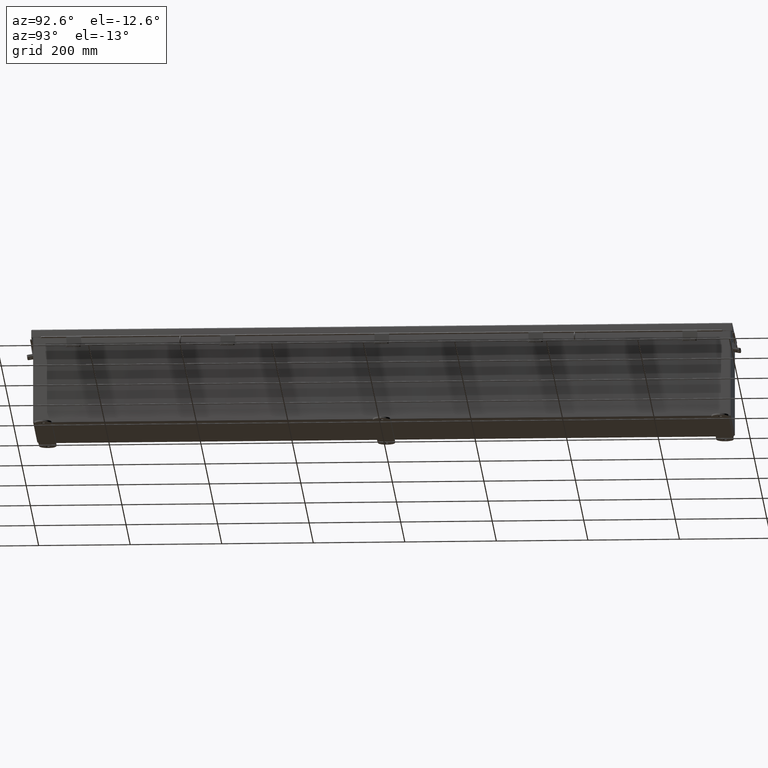
[diagram: clean part render]
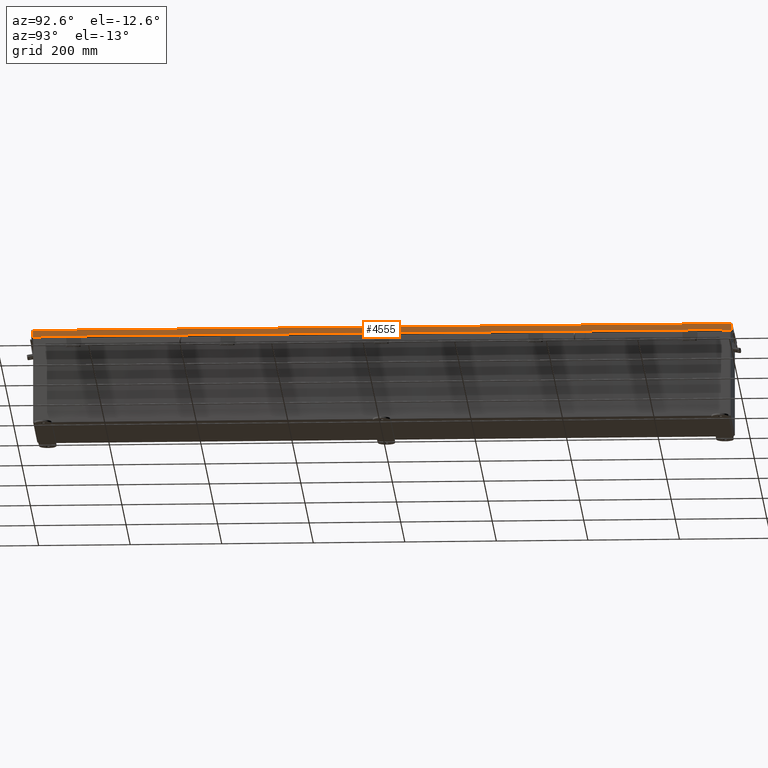
[diagram: same view with one face highlighted and labeled with its STEP entity id]
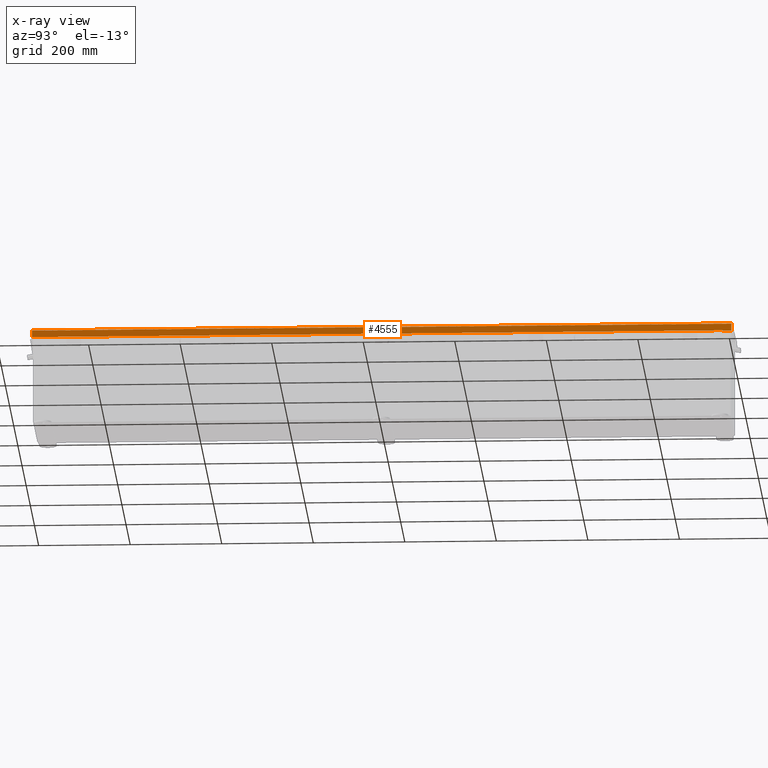
[diagram: x-ray of the same camera — body ghosted, the highlighted face saturated]
A machine part, auxiliary view. The second image highlights one B-rep face of the part: STEP entity #4555.
The next image is the same camera in x-ray: the body ghosted, the highlighted face saturated — about 0% of this face is hidden behind the body in this view.
In plain terms, the highlighted planar face has unit normal (-1, 0, -0).
Its self-contained STEP definition (entity closure, byte-faithful):
#286 = DIRECTION ( 'NONE',  ( 3.569293475308527700E-015, 1.986943405025415600E-029, -1.000000000000000000 ) ) ;
#900 = CARTESIAN_POINT ( 'NONE',  ( -4.156250000000021300, -5.869204673888065100E-018, 0.6123000000000212700 ) ) ;
#1011 = ORIENTED_EDGE ( 'NONE', *, *, #25215, .F. ) ;
#1401 = CARTESIAN_POINT ( 'NONE',  ( -4.156250000000018700, 30.07447893218812900, 0.01300000000000010700 ) ) ;
#2275 = LINE ( 'NONE', #39872, #36767 ) ;
#2786 = CARTESIAN_POINT ( 'NONE',  ( -4.156250000000021300, 29.32447893218812900, 0.6122999999999994000 ) ) ;
#2972 = EDGE_CURVE ( 'NONE', #22352, #22636, #2275, .T. ) ;
#4522 = CARTESIAN_POINT ( 'NONE',  ( -4.156250000000021300, -29.32447893218813900, 0.6122999999999994000 ) ) ;
#4555 = ADVANCED_FACE ( 'NONE', ( #38794 ), #40313, .F. ) ;
#5284 = CARTESIAN_POINT ( 'NONE',  ( -4.156250000000025800, 29.32447893218812900, 0.5967115427318772100 ) ) ;
#5696 = EDGE_CURVE ( 'NONE', #15890, #18380, #9050, .T. ) ;
#6158 = VECTOR ( 'NONE', #39742, 39.37007874015748100 ) ;
#6262 = DIRECTION ( 'NONE',  ( 2.453473827042142800E-013, -2.803970088048152600E-013, -1.000000000000000000 ) ) ;
#6567 = DIRECTION ( 'NONE',  ( -3.504962610059787500E-014, -2.036247211601728600E-029, 1.000000000000000000 ) ) ;
#8426 = VERTEX_POINT ( 'NONE', #15554 ) ;
#8883 = EDGE_CURVE ( 'NONE', #14673, #22352, #22436, .T. ) ;
#9050 = LINE ( 'NONE', #35660, #42482 ) ;
#9540 = EDGE_CURVE ( 'NONE', #8426, #22636, #15040, .T. ) ;
#10635 = ORIENTED_EDGE ( 'NONE', *, *, #11990, .T. ) ;
#11238 = CARTESIAN_POINT ( 'NONE',  ( -4.156250000000025800, 29.32447893218812500, 0.5967115427318772100 ) ) ;
#11334 = CARTESIAN_POINT ( 'NONE',  ( -4.156250000000018700, -30.07447893218813600, -1.529834876451987200E-014 ) ) ;
#11741 = VERTEX_POINT ( 'NONE', #26543 ) ;
#11990 = EDGE_CURVE ( 'NONE', #11741, #8426, #23469, .T. ) ;
#12544 = VECTOR ( 'NONE', #31493, 39.37007874015748100 ) ;
#13035 = ORIENTED_EDGE ( 'NONE', *, *, #9540, .T. ) ;
#13260 = EDGE_CURVE ( 'NONE', #13587, #18380, #42763, .T. ) ;
#13508 = ORIENTED_EDGE ( 'NONE', *, *, #41552, .F. ) ;
#13587 = VERTEX_POINT ( 'NONE', #2786 ) ;
#14515 = ORIENTED_EDGE ( 'NONE', *, *, #13260, .T. ) ;
#14673 = VERTEX_POINT ( 'NONE', #11238 ) ;
#15040 = LINE ( 'NONE', #26320, #6158 ) ;
#15554 = CARTESIAN_POINT ( 'NONE',  ( -4.156250000000021300, -30.07447893218813900, 0.6122999999999994000 ) ) ;
#15890 = VERTEX_POINT ( 'NONE', #1401 ) ;
#17606 = CARTESIAN_POINT ( 'NONE',  ( -4.156250000000018700, 30.15624999999999600, 0.01300000000000010700 ) ) ;
#17815 = VECTOR ( 'NONE', #20951, 39.37007874015748100 ) ;
#18380 = VERTEX_POINT ( 'NONE', #33545 ) ;
#19163 = EDGE_LOOP ( 'NONE', ( #13508, #14515, #39911, #1011, #10635, #13035, #28205, #19829 ) ) ;
#19829 = ORIENTED_EDGE ( 'NONE', *, *, #8883, .F. ) ;
#20326 = DIRECTION ( 'NONE',  ( 1.000000000000000000, 8.829566135541993500E-029, 3.569293475308527700E-015 ) ) ;
#20951 = DIRECTION ( 'NONE',  ( 8.879078675939842000E-029, 1.000000000000000000, -9.058977802844569300E-018 ) ) ;
#21191 = LINE ( 'NONE', #42929, #31156 ) ;
#22352 = VERTEX_POINT ( 'NONE', #35825 ) ;
#22436 = LINE ( 'NONE', #5284, #30278 ) ;
#22636 = VERTEX_POINT ( 'NONE', #4522 ) ;
#23469 = LINE ( 'NONE', #11334, #12544 ) ;
#25215 = EDGE_CURVE ( 'NONE', #11741, #15890, #35584, .T. ) ;
#26320 = CARTESIAN_POINT ( 'NONE',  ( -4.156250000000021300, -5.869204673888065100E-018, 0.6123000000000212700 ) ) ;
#26543 = CARTESIAN_POINT ( 'NONE',  ( -4.156250000000018700, -30.07447893218813900, 0.01300000000000010700 ) ) ;
#28205 = ORIENTED_EDGE ( 'NONE', *, *, #2972, .F. ) ;
#28688 = DIRECTION ( 'NONE',  ( -8.831620719720703700E-029, -1.000000000000000000, 2.006664927655948800E-029 ) ) ;
#29794 = AXIS2_PLACEMENT_3D ( 'NONE', #33628, #20326, #286 ) ;
#30278 = VECTOR ( 'NONE', #28688, 39.37007874015748100 ) ;
#31018 = DIRECTION ( 'NONE',  ( 8.831620719720703700E-029, 1.000000000000000000, -2.006664927655948800E-029 ) ) ;
#31156 = VECTOR ( 'NONE', #6262, 39.37007874015748100 ) ;
#31493 = DIRECTION ( 'NONE',  ( -3.569293475308527700E-015, -1.986943405025415600E-029, 1.000000000000000000 ) ) ;
#33545 = CARTESIAN_POINT ( 'NONE',  ( -4.156250000000021300, 30.07447893218812900, 0.6122999999999994000 ) ) ;
#33628 = CARTESIAN_POINT ( 'NONE',  ( -4.156250000000018700, 4.802076551362963100E-018, -2.185478394931410600E-015 ) ) ;
#35584 = LINE ( 'NONE', #17606, #17815 ) ;
#35660 = CARTESIAN_POINT ( 'NONE',  ( -4.156250000000018700, 30.07447893218812900, 0.0000000000000000000 ) ) ;
#35825 = CARTESIAN_POINT ( 'NONE',  ( -4.156250000000025800, -29.32447893218813900, 0.5967115427318772100 ) ) ;
#36767 = VECTOR ( 'NONE', #6567, 39.37007874015748100 ) ;
#37019 = VECTOR ( 'NONE', #31018, 39.37007874015748100 ) ;
#38794 = FACE_OUTER_BOUND ( 'NONE', #19163, .T. ) ;
#38991 = DIRECTION ( 'NONE',  ( -3.569293475308527700E-015, -1.986943405025415600E-029, 1.000000000000000000 ) ) ;
#39742 = DIRECTION ( 'NONE',  ( 8.831620719720703700E-029, 1.000000000000000000, -2.006664927655948800E-029 ) ) ;
#39872 = CARTESIAN_POINT ( 'NONE',  ( -4.156250000000025800, -29.32447893218813900, 0.5967115427318772100 ) ) ;
#39911 = ORIENTED_EDGE ( 'NONE', *, *, #5696, .F. ) ;
#40313 = PLANE ( 'NONE',  #29794 ) ;
#41552 = EDGE_CURVE ( 'NONE', #13587, #14673, #21191, .T. ) ;
#42482 = VECTOR ( 'NONE', #38991, 39.37007874015748100 ) ;
#42763 = LINE ( 'NONE', #900, #37019 ) ;
#42929 = CARTESIAN_POINT ( 'NONE',  ( -4.156250000000024000, 29.32447893218812900, 0.6122999999999982900 ) ) ;